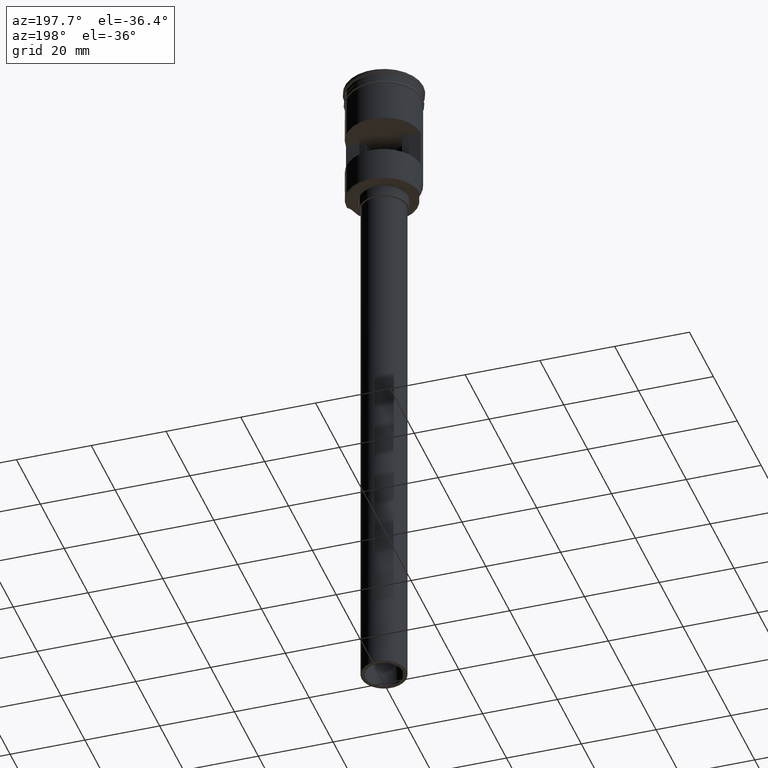
[diagram: clean part render]
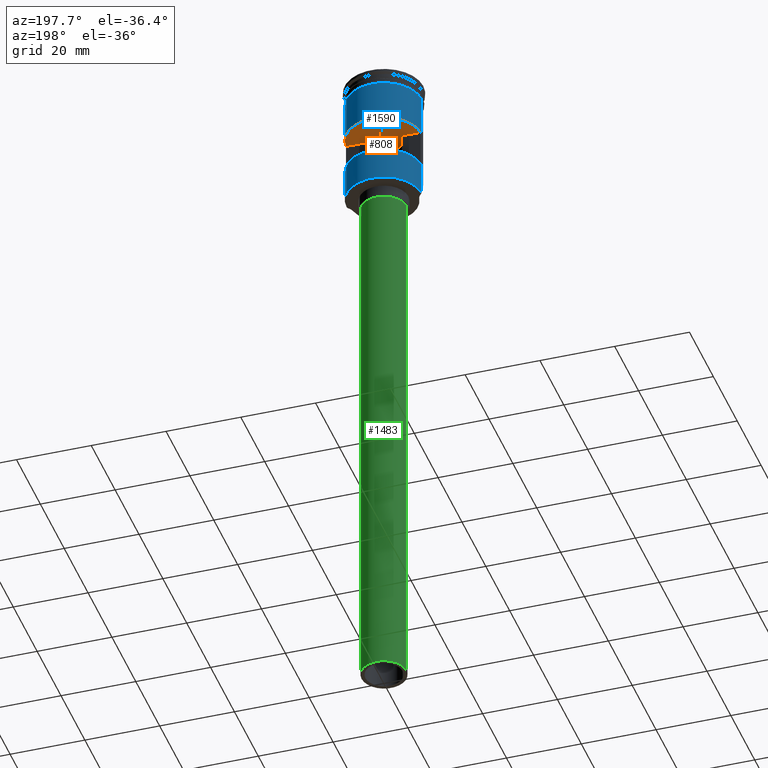
[diagram: same view with three faces highlighted in distinct colors, each labeled with its STEP entity id]
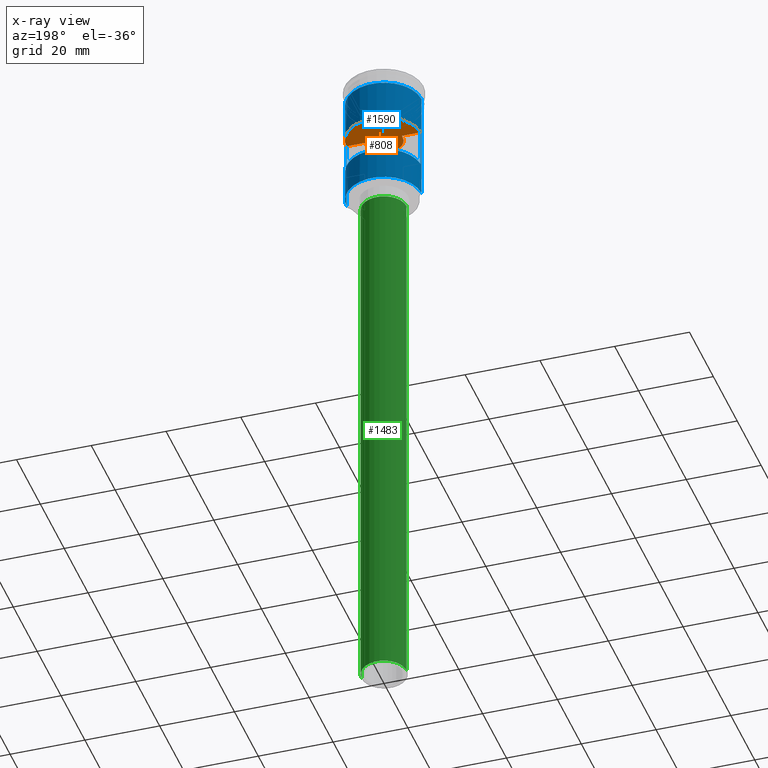
[diagram: x-ray of the same camera — body ghosted, the three highlighted faces saturated]
A machine part, auxiliary view with three faces highlighted in distinct colors.
The next image is the same camera in x-ray (body ghosted, the three faces saturated) — at least one of them is partly hidden behind the body in this view.
Their STEP definitions:

[orange] entity #808 — the highlighted planar face has unit normal (0, -0, 1).
#19 = AXIS2_PLACEMENT_3D ( 'NONE', #830, #70, #822 ) ;
#27 = VERTEX_POINT ( 'NONE', #548 ) ;
#70 = DIRECTION ( 'NONE',  ( 0.000000000000000000, -1.845450506358306558E-16, 1.000000000000000000 ) ) ;
#93 = CARTESIAN_POINT ( 'NONE',  ( 5.000000000000000888, 6.123233995736766282E-16, -15.00000000000000000 ) ) ;
#133 = DIRECTION ( 'NONE',  ( 0.000000000000000000, -1.000000000000000000, -1.734723475976808080E-16 ) ) ;
#159 = CARTESIAN_POINT ( 'NONE',  ( 4.963869458396339418, 0.6000000000000000888, -15.00000000000000000 ) ) ;
#183 = EDGE_CURVE ( 'NONE', #1066, #27, #331, .T. ) ;
#188 = ORIENTED_EDGE ( 'NONE', *, *, #731, .F. ) ;
#199 = CARTESIAN_POINT ( 'NONE',  ( 0.000000000000000000, 0.000000000000000000, -15.00000000000000000 ) ) ;
#258 = DIRECTION ( 'NONE',  ( -0.000000000000000000, 1.845450506358306558E-16, -1.000000000000000000 ) ) ;
#285 = VECTOR ( 'NONE', #536, 1000.000000000000000 ) ;
#299 = DIRECTION ( 'NONE',  ( 0.000000000000000000, -1.000000000000000000, -3.469446951953613696E-16 ) ) ;
#331 = CIRCLE ( 'NONE', #791, 5.000000000000000888 ) ;
#414 = DIRECTION ( 'NONE',  ( -0.000000000000000000, 1.845450506358306558E-16, -1.000000000000000000 ) ) ;
#415 = CARTESIAN_POINT ( 'NONE',  ( -10.50000000000000000, 0.6000000000000000888, -15.00000000000000000 ) ) ;
#419 = CARTESIAN_POINT ( 'NONE',  ( -10.50000000000000000, 0.6000000000000000888, -15.00000000000000000 ) ) ;
#422 = EDGE_CURVE ( 'NONE', #1188, #1066, #974, .T. ) ;
#445 = FACE_OUTER_BOUND ( 'NONE', #1128, .T. ) ;
#482 = VECTOR ( 'NONE', #1025, 1000.000000000000000 ) ;
#491 = EDGE_CURVE ( 'NONE', #1484, #1382, #741, .T. ) ;
#529 = CARTESIAN_POINT ( 'NONE',  ( -5.000000000000000888, 0.000000000000000000, -15.00000000000000000 ) ) ;
#534 = CARTESIAN_POINT ( 'NONE',  ( 0.000000000000000000, 0.000000000000000000, -15.00000000000000000 ) ) ;
#536 = DIRECTION ( 'NONE',  ( 1.000000000000000000, -0.000000000000000000, -0.000000000000000000 ) ) ;
#548 = CARTESIAN_POINT ( 'NONE',  ( -4.963869458396343859, 0.5999999999999999778, -15.00000000000000000 ) ) ;
#625 = LINE ( 'NONE', #415, #285 ) ;
#650 = ORIENTED_EDGE ( 'NONE', *, *, #1594, .F. ) ;
#659 = VERTEX_POINT ( 'NONE', #159 ) ;
#696 = DIRECTION ( 'NONE',  ( 0.000000000000000000, -1.000000000000000000, -3.469446951953613696E-16 ) ) ;
#709 = DIRECTION ( 'NONE',  ( -0.000000000000000000, 1.845450506358306558E-16, -1.000000000000000000 ) ) ;
#731 = EDGE_CURVE ( 'NONE', #1484, #27, #1411, .T. ) ;
#741 = CIRCLE ( 'NONE', #1448, 9.999999999999994671 ) ;
#751 = DIRECTION ( 'NONE',  ( -0.000000000000000000, 1.845450506358306558E-16, -1.000000000000000000 ) ) ;
#791 = AXIS2_PLACEMENT_3D ( 'NONE', #534, #414, #299 ) ;
#808 = ADVANCED_FACE ( 'NONE', ( #445 ), #1060, .F. ) ;
#822 = DIRECTION ( 'NONE',  ( 0.000000000000000000, -1.000000000000000000, -1.845450506358306558E-16 ) ) ;
#830 = CARTESIAN_POINT ( 'NONE',  ( -10.50000000000000000, 0.6000000000000000888, -15.00000000000000000 ) ) ;
#833 = CARTESIAN_POINT ( 'NONE',  ( 9.981983770774210285, 0.6000000000000000888, -15.00000000000000000 ) ) ;
#897 = DIRECTION ( 'NONE',  ( 0.000000000000000000, -1.000000000000000000, -3.469446951953613696E-16 ) ) ;
#908 = CARTESIAN_POINT ( 'NONE',  ( -9.981983770774217390, 0.6000000000000000888, -15.00000000000000000 ) ) ;
#974 = CIRCLE ( 'NONE', #1318, 5.000000000000000888 ) ;
#1025 = DIRECTION ( 'NONE',  ( 1.000000000000000000, -0.000000000000000000, -0.000000000000000000 ) ) ;
#1060 = PLANE ( 'NONE',  #19 ) ;
#1066 = VERTEX_POINT ( 'NONE', #529 ) ;
#1128 = EDGE_LOOP ( 'NONE', ( #650, #1207, #1338, #1142, #188, #1428 ) ) ;
#1142 = ORIENTED_EDGE ( 'NONE', *, *, #183, .T. ) ;
#1188 = VERTEX_POINT ( 'NONE', #93 ) ;
#1207 = ORIENTED_EDGE ( 'NONE', *, *, #1512, .T. ) ;
#1256 = CARTESIAN_POINT ( 'NONE',  ( 0.000000000000000000, 0.000000000000000000, -15.00000000000000000 ) ) ;
#1318 = AXIS2_PLACEMENT_3D ( 'NONE', #199, #709, #696 ) ;
#1338 = ORIENTED_EDGE ( 'NONE', *, *, #422, .T. ) ;
#1381 = CARTESIAN_POINT ( 'NONE',  ( 0.000000000000000000, 0.000000000000000000, -15.00000000000000000 ) ) ;
#1382 = VERTEX_POINT ( 'NONE', #833 ) ;
#1411 = LINE ( 'NONE', #419, #482 ) ;
#1428 = ORIENTED_EDGE ( 'NONE', *, *, #491, .T. ) ;
#1448 = AXIS2_PLACEMENT_3D ( 'NONE', #1256, #258, #133 ) ;
#1484 = VERTEX_POINT ( 'NONE', #908 ) ;
#1512 = EDGE_CURVE ( 'NONE', #659, #1188, #1601, .T. ) ;
#1577 = AXIS2_PLACEMENT_3D ( 'NONE', #1381, #751, #897 ) ;
#1594 = EDGE_CURVE ( 'NONE', #659, #1382, #625, .T. ) ;
#1601 = CIRCLE ( 'NONE', #1577, 5.000000000000000888 ) ;

[blue] entity #1590 — the highlighted cylindrical surface (partial cylindrical patch) has radius 10 mm, axis along (-0, -0, 1).
#35 = VERTEX_POINT ( 'NONE', #915 ) ;
#40 = DIRECTION ( 'NONE',  ( 1.000000000000000000, 0.000000000000000000, 0.000000000000000000 ) ) ;
#68 = DIRECTION ( 'NONE',  ( -0.000000000000000000, -0.000000000000000000, 1.000000000000000000 ) ) ;
#87 = ORIENTED_EDGE ( 'NONE', *, *, #661, .F. ) ;
#119 = AXIS2_PLACEMENT_3D ( 'NONE', #286, #309, #775 ) ;
#133 = DIRECTION ( 'NONE',  ( 0.000000000000000000, -1.000000000000000000, -1.734723475976808080E-16 ) ) ;
#136 = CARTESIAN_POINT ( 'NONE',  ( 9.981983770774217390, 0.5999999999999998668, 0.000000000000000000 ) ) ;
#151 = LINE ( 'NONE', #552, #433 ) ;
#162 = FACE_OUTER_BOUND ( 'NONE', #1102, .T. ) ;
#165 = EDGE_CURVE ( 'NONE', #622, #797, #1496, .T. ) ;
#230 = DIRECTION ( 'NONE',  ( 1.000000000000000000, 0.000000000000000000, 0.000000000000000000 ) ) ;
#258 = DIRECTION ( 'NONE',  ( -0.000000000000000000, 1.845450506358306558E-16, -1.000000000000000000 ) ) ;
#286 = CARTESIAN_POINT ( 'NONE',  ( 0.000000000000000000, 0.000000000000000000, -25.00000000000000000 ) ) ;
#294 = CARTESIAN_POINT ( 'NONE',  ( 0.000000000000000000, 0.000000000000000000, 0.000000000000000000 ) ) ;
#309 = DIRECTION ( 'NONE',  ( 0.000000000000000000, 0.000000000000000000, 1.000000000000000000 ) ) ;
#367 = VERTEX_POINT ( 'NONE', #930 ) ;
#389 = CARTESIAN_POINT ( 'NONE',  ( -9.999999999999991118, 0.000000000000000000, -29.29999999999997229 ) ) ;
#399 = ORIENTED_EDGE ( 'NONE', *, *, #1191, .T. ) ;
#405 = DIRECTION ( 'NONE',  ( 0.000000000000000000, 0.000000000000000000, -1.000000000000000000 ) ) ;
#430 = VERTEX_POINT ( 'NONE', #579 ) ;
#433 = VECTOR ( 'NONE', #1132, 1000.000000000000000 ) ;
#452 = CARTESIAN_POINT ( 'NONE',  ( -9.981983770774217390, 0.5999999999999998668, -25.00000000000000000 ) ) ;
#462 = VECTOR ( 'NONE', #405, 1000.000000000000000 ) ;
#490 = CARTESIAN_POINT ( 'NONE',  ( 0.000000000000000000, 0.000000000000000000, -33.79999999999998295 ) ) ;
#491 = EDGE_CURVE ( 'NONE', #1484, #1382, #741, .T. ) ;
#500 = DIRECTION ( 'NONE',  ( -0.000000000000000000, -0.000000000000000000, 1.000000000000000000 ) ) ;
#538 = EDGE_LOOP ( 'NONE', ( #1545, #803, #87, #1064 ) ) ;
#552 = CARTESIAN_POINT ( 'NONE',  ( -9.981983770774217390, 0.5999999999999998668, 0.000000000000000000 ) ) ;
#559 = VERTEX_POINT ( 'NONE', #389 ) ;
#579 = CARTESIAN_POINT ( 'NONE',  ( -10.00000000000000000, 1.224646799147353256E-15, -3.999999999999996447 ) ) ;
#587 = VERTEX_POINT ( 'NONE', #1586 ) ;
#590 = AXIS2_PLACEMENT_3D ( 'NONE', #490, #1493, #1117 ) ;
#594 = EDGE_CURVE ( 'NONE', #587, #1061, #1002, .T. ) ;
#607 = LINE ( 'NONE', #1089, #1192 ) ;
#609 = DIRECTION ( 'NONE',  ( -0.000000000000000000, -0.000000000000000000, 1.000000000000000000 ) ) ;
#622 = VERTEX_POINT ( 'NONE', #1282 ) ;
#656 = CYLINDRICAL_SURFACE ( 'NONE', #872, 9.999999999999994671 ) ;
#661 = EDGE_CURVE ( 'NONE', #797, #1484, #151, .T. ) ;
#668 = CARTESIAN_POINT ( 'NONE',  ( -9.999999999999991118, 0.000000000000000000, -33.79999999999998295 ) ) ;
#681 = LINE ( 'NONE', #1555, #823 ) ;
#711 = DIRECTION ( 'NONE',  ( -0.000000000000000000, -0.000000000000000000, 1.000000000000000000 ) ) ;
#729 = CARTESIAN_POINT ( 'NONE',  ( -9.999999999999991118, 0.000000000000000000, -33.99999999999999289 ) ) ;
#741 = CIRCLE ( 'NONE', #1448, 9.999999999999994671 ) ;
#743 = CIRCLE ( 'NONE', #869, 9.999999999999998224 ) ;
#775 = DIRECTION ( 'NONE',  ( -1.000000000000000000, -8.881784197001250351E-16, 0.000000000000000000 ) ) ;
#776 = FACE_BOUND ( 'NONE', #538, .T. ) ;
#797 = VERTEX_POINT ( 'NONE', #452 ) ;
#803 = ORIENTED_EDGE ( 'NONE', *, *, #491, .F. ) ;
#805 = ORIENTED_EDGE ( 'NONE', *, *, #1319, .F. ) ;
#823 = VECTOR ( 'NONE', #924, 1000.000000000000000 ) ;
#833 = CARTESIAN_POINT ( 'NONE',  ( 9.981983770774210285, 0.6000000000000000888, -15.00000000000000000 ) ) ;
#869 = AXIS2_PLACEMENT_3D ( 'NONE', #1122, #1346, #230 ) ;
#872 = AXIS2_PLACEMENT_3D ( 'NONE', #294, #500, #40 ) ;
#889 = LINE ( 'NONE', #136, #462 ) ;
#908 = CARTESIAN_POINT ( 'NONE',  ( -9.981983770774217390, 0.6000000000000000888, -15.00000000000000000 ) ) ;
#915 = CARTESIAN_POINT ( 'NONE',  ( 9.999999999999998224, 0.000000000000000000, -3.999999999999996447 ) ) ;
#916 = CARTESIAN_POINT ( 'NONE',  ( -9.999999999999994671, 1.224646799147352665E-15, 0.000000000000000000 ) ) ;
#917 = ORIENTED_EDGE ( 'NONE', *, *, #928, .F. ) ;
#924 = DIRECTION ( 'NONE',  ( -0.000000000000000000, -0.000000000000000000, 1.000000000000000000 ) ) ;
#928 = EDGE_CURVE ( 'NONE', #35, #430, #743, .T. ) ;
#930 = CARTESIAN_POINT ( 'NONE',  ( 9.999999999999994671, 1.224646799147352665E-15, -29.29999999999997229 ) ) ;
#967 = EDGE_CURVE ( 'NONE', #1061, #559, #1336, .T. ) ;
#1002 = CIRCLE ( 'NONE', #590, 9.999999999999994671 ) ;
#1022 = ORIENTED_EDGE ( 'NONE', *, *, #1201, .F. ) ;
#1024 = ORIENTED_EDGE ( 'NONE', *, *, #594, .T. ) ;
#1061 = VERTEX_POINT ( 'NONE', #668 ) ;
#1064 = ORIENTED_EDGE ( 'NONE', *, *, #165, .F. ) ;
#1081 = VECTOR ( 'NONE', #609, 1000.000000000000000 ) ;
#1089 = CARTESIAN_POINT ( 'NONE',  ( 9.999999999999994671, 0.000000000000000000, 0.000000000000000000 ) ) ;
#1102 = EDGE_LOOP ( 'NONE', ( #1451, #399, #917, #805, #1022, #1024 ) ) ;
#1110 = VECTOR ( 'NONE', #68, 1000.000000000000000 ) ;
#1117 = DIRECTION ( 'NONE',  ( -1.000000000000000000, 0.000000000000000000, 0.000000000000000000 ) ) ;
#1122 = CARTESIAN_POINT ( 'NONE',  ( 0.000000000000000000, 0.000000000000000000, -3.999999999999996447 ) ) ;
#1132 = DIRECTION ( 'NONE',  ( -0.000000000000000000, -0.000000000000000000, 1.000000000000000000 ) ) ;
#1191 = EDGE_CURVE ( 'NONE', #559, #430, #1304, .T. ) ;
#1192 = VECTOR ( 'NONE', #711, 1000.000000000000000 ) ;
#1201 = EDGE_CURVE ( 'NONE', #587, #367, #681, .T. ) ;
#1256 = CARTESIAN_POINT ( 'NONE',  ( 0.000000000000000000, 0.000000000000000000, -15.00000000000000000 ) ) ;
#1282 = CARTESIAN_POINT ( 'NONE',  ( 9.981983770774210285, 0.6000000000000000888, -25.00000000000000000 ) ) ;
#1304 = LINE ( 'NONE', #916, #1110 ) ;
#1319 = EDGE_CURVE ( 'NONE', #367, #35, #607, .T. ) ;
#1336 = LINE ( 'NONE', #729, #1081 ) ;
#1346 = DIRECTION ( 'NONE',  ( -0.000000000000000000, -0.000000000000000000, 1.000000000000000000 ) ) ;
#1382 = VERTEX_POINT ( 'NONE', #833 ) ;
#1448 = AXIS2_PLACEMENT_3D ( 'NONE', #1256, #258, #133 ) ;
#1451 = ORIENTED_EDGE ( 'NONE', *, *, #967, .T. ) ;
#1484 = VERTEX_POINT ( 'NONE', #908 ) ;
#1493 = DIRECTION ( 'NONE',  ( 0.000000000000000000, 0.000000000000000000, 1.000000000000000000 ) ) ;
#1496 = CIRCLE ( 'NONE', #119, 9.999999999999994671 ) ;
#1508 = EDGE_CURVE ( 'NONE', #1382, #622, #889, .T. ) ;
#1545 = ORIENTED_EDGE ( 'NONE', *, *, #1508, .F. ) ;
#1555 = CARTESIAN_POINT ( 'NONE',  ( 9.999999999999991118, 1.224646799147352270E-15, -33.99999999999999289 ) ) ;
#1586 = CARTESIAN_POINT ( 'NONE',  ( 9.999999999999991118, 1.224646799147352270E-15, -33.79999999999998295 ) ) ;
#1590 = ADVANCED_FACE ( 'NONE', ( #776, #162 ), #656, .T. ) ;

[green] entity #1483 — the highlighted cylindrical surface (edge-blend (fillet) strip) has radius 6 mm, axis along (-0, -0, 1).
#69 = VERTEX_POINT ( 'NONE', #371 ) ;
#99 = CIRCLE ( 'NONE', #172, 6.000000000000000888 ) ;
#117 = DIRECTION ( 'NONE',  ( 0.000000000000000000, 0.000000000000000000, -1.000000000000000000 ) ) ;
#172 = AXIS2_PLACEMENT_3D ( 'NONE', #725, #117, #978 ) ;
#236 = ORIENTED_EDGE ( 'NONE', *, *, #828, .T. ) ;
#261 = FACE_OUTER_BOUND ( 'NONE', #362, .T. ) ;
#279 = CARTESIAN_POINT ( 'NONE',  ( -6.000000000000000888, 7.347880794884120722E-16, -184.0000000000000000 ) ) ;
#296 = CARTESIAN_POINT ( 'NONE',  ( -6.000000000000000888, 7.347880794884120722E-16, -37.00000000000000000 ) ) ;
#362 = EDGE_LOOP ( 'NONE', ( #1010, #1255, #236, #1389 ) ) ;
#371 = CARTESIAN_POINT ( 'NONE',  ( 6.000000000000000888, 0.000000000000000000, -184.0000000000000000 ) ) ;
#381 = CYLINDRICAL_SURFACE ( 'NONE', #925, 6.000000000000000888 ) ;
#388 = VERTEX_POINT ( 'NONE', #584 ) ;
#511 = EDGE_CURVE ( 'NONE', #69, #388, #1124, .T. ) ;
#549 = LINE ( 'NONE', #644, #592 ) ;
#566 = EDGE_CURVE ( 'NONE', #1131, #69, #99, .T. ) ;
#584 = CARTESIAN_POINT ( 'NONE',  ( 6.000000000000000888, 0.000000000000000000, -37.00000000000000000 ) ) ;
#592 = VECTOR ( 'NONE', #1141, 1000.000000000000000 ) ;
#644 = CARTESIAN_POINT ( 'NONE',  ( -6.000000000000000888, 7.347880794884120722E-16, -184.0000000000000000 ) ) ;
#725 = CARTESIAN_POINT ( 'NONE',  ( 0.000000000000000000, 0.000000000000000000, -184.0000000000000000 ) ) ;
#828 = EDGE_CURVE ( 'NONE', #1123, #388, #956, .T. ) ;
#867 = CARTESIAN_POINT ( 'NONE',  ( 6.000000000000000888, 0.000000000000000000, -184.0000000000000000 ) ) ;
#878 = DIRECTION ( 'NONE',  ( -0.000000000000000000, -0.000000000000000000, 1.000000000000000000 ) ) ;
#925 = AXIS2_PLACEMENT_3D ( 'NONE', #1513, #1528, #1271 ) ;
#956 = CIRCLE ( 'NONE', #1321, 6.000000000000000888 ) ;
#978 = DIRECTION ( 'NONE',  ( -1.000000000000000000, 0.000000000000000000, 0.000000000000000000 ) ) ;
#1010 = ORIENTED_EDGE ( 'NONE', *, *, #566, .F. ) ;
#1044 = EDGE_CURVE ( 'NONE', #1131, #1123, #549, .T. ) ;
#1080 = VECTOR ( 'NONE', #878, 1000.000000000000000 ) ;
#1123 = VERTEX_POINT ( 'NONE', #296 ) ;
#1124 = LINE ( 'NONE', #867, #1080 ) ;
#1131 = VERTEX_POINT ( 'NONE', #279 ) ;
#1141 = DIRECTION ( 'NONE',  ( -0.000000000000000000, -0.000000000000000000, 1.000000000000000000 ) ) ;
#1175 = DIRECTION ( 'NONE',  ( 0.000000000000000000, 0.000000000000000000, -1.000000000000000000 ) ) ;
#1255 = ORIENTED_EDGE ( 'NONE', *, *, #1044, .T. ) ;
#1271 = DIRECTION ( 'NONE',  ( 1.000000000000000000, 0.000000000000000000, 0.000000000000000000 ) ) ;
#1321 = AXIS2_PLACEMENT_3D ( 'NONE', #1580, #1175, #1557 ) ;
#1389 = ORIENTED_EDGE ( 'NONE', *, *, #511, .F. ) ;
#1483 = ADVANCED_FACE ( 'NONE', ( #261 ), #381, .T. ) ;
#1513 = CARTESIAN_POINT ( 'NONE',  ( 0.000000000000000000, 0.000000000000000000, -184.0000000000000000 ) ) ;
#1528 = DIRECTION ( 'NONE',  ( -0.000000000000000000, -0.000000000000000000, 1.000000000000000000 ) ) ;
#1557 = DIRECTION ( 'NONE',  ( -1.000000000000000000, 0.000000000000000000, 0.000000000000000000 ) ) ;
#1580 = CARTESIAN_POINT ( 'NONE',  ( 0.000000000000000000, 0.000000000000000000, -37.00000000000000000 ) ) ;